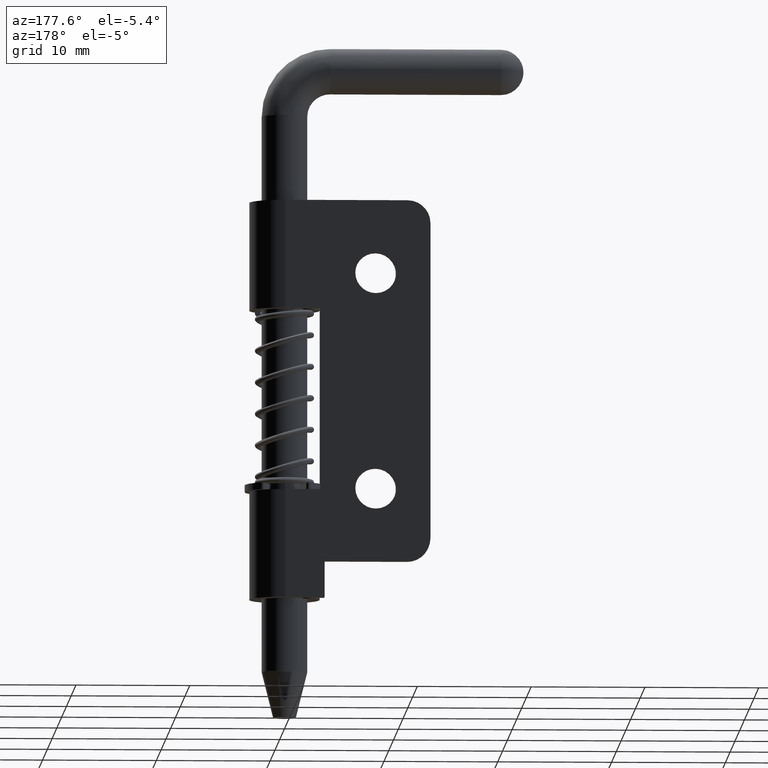
[diagram: clean part render]
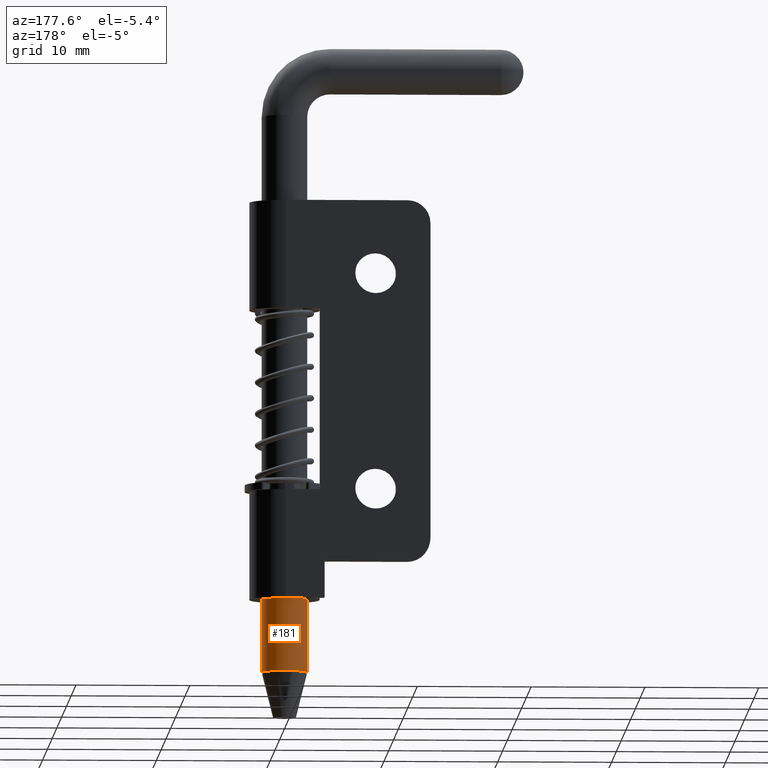
[diagram: same view with one face highlighted and labeled with its STEP entity id]
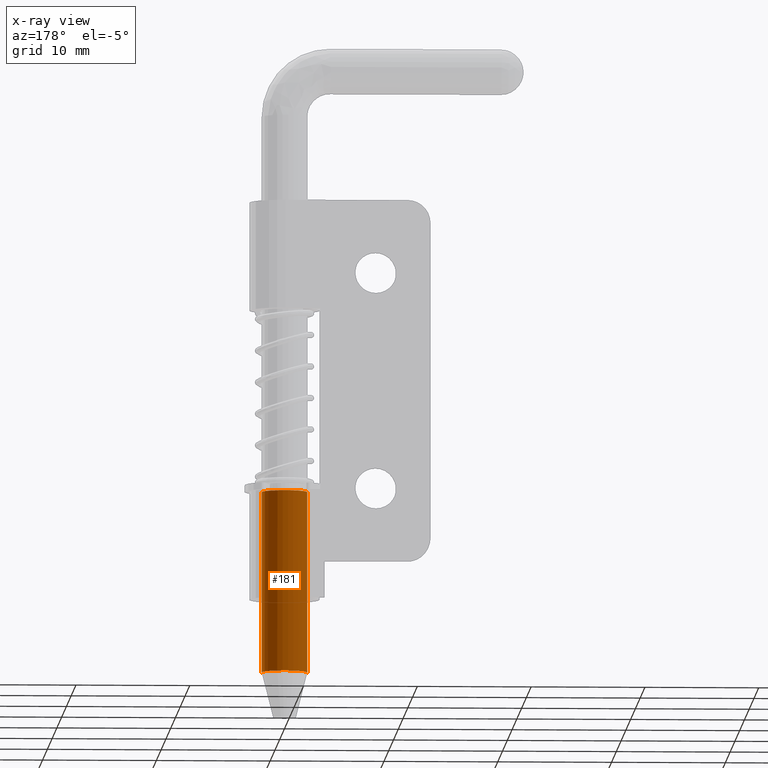
[diagram: x-ray of the same camera — body ghosted, the highlighted face saturated]
A machine part, auxiliary view. The second image highlights one B-rep face of the part: STEP entity #181.
The next image is the same camera in x-ray: the body ghosted, the highlighted face saturated — about 0% of this face is hidden behind the body in this view.
In plain terms, the highlighted cylindrical surface (edge-blend (fillet) strip) has radius 2 mm, axis along (0, 0, 1).
Its self-contained STEP definition (entity closure, byte-faithful):
#181=ADVANCED_FACE('',(#559),#558,.T.);
#558=CYLINDRICAL_SURFACE('',#1350,2.00000000000E+00);
#559=FACE_OUTER_BOUND('',#1351,.T.);
#1347=CARTESIAN_POINT('',(0.00000000000E+00,0.00000000000E+00,0.00000000000E+00));
#1348=DIRECTION('',(0.00000000000E+00,-0.00000000000E+00,1.00000000000E+00));
#1349=DIRECTION('',(1.00000000000E+00,0.00000000000E+00,0.00000000000E+00));
#1350=AXIS2_PLACEMENT_3D('',#1347,#1348,#1349);
#1351=EDGE_LOOP('',(#3275,#3276,#3277,#3278,#3279,#3280));
#3275=ORIENTED_EDGE('',*,*,#3584,.T.);
#3276=ORIENTED_EDGE('',*,*,#3617,.T.);
#3277=ORIENTED_EDGE('',*,*,#3594,.T.);
#3278=ORIENTED_EDGE('',*,*,#3638,.F.);
#3279=ORIENTED_EDGE('',*,*,#3637,.F.);
#3280=ORIENTED_EDGE('',*,*,#3639,.T.);
#3584=EDGE_CURVE('',#3769,#4038,#4039,.T.);
#3594=EDGE_CURVE('',#4106,#3859,#4107,.T.);
#3617=EDGE_CURVE('',#4038,#4106,#4251,.T.);
#3637=EDGE_CURVE('',#4360,#4359,#4379,.T.);
#3638=EDGE_CURVE('',#4359,#3859,#4385,.T.);
#3639=EDGE_CURVE('',#4360,#3769,#4391,.T.);
#3769=VERTEX_POINT('',#5245);
#3859=VERTEX_POINT('',#5300);
#4038=VERTEX_POINT('',#5421);
#4039=CIRCLE('',#5425,2.00000000000E+00);
#4106=VERTEX_POINT('',#5466);
#4107=CIRCLE('',#5470,2.00000000000E+00);
#4251=CIRCLE('',#5550,2.00000000000E+00);
#4359=VERTEX_POINT('',#5609);
#4360=VERTEX_POINT('',#5610);
#4379=CIRCLE('',#5622,2.00000000000E+00);
#4385=(BOUNDED_CURVE() B_SPLINE_CURVE(1,(#5623,#5624),.UNSPECIFIED.,.F.,.F.) B_SPLINE_CURVE_WITH_KNOTS((2,2),(8.33333328360E-02,9.16666665505E-01),.UNSPECIFIED.) CURVE() GEOMETRIC_REPRESENTATION_ITEM() RATIONAL_B_SPLINE_CURVE((1.00000000000E+00,1.00000000000E+00)) REPRESENTATION_ITEM('') );
#4391=(BOUNDED_CURVE() B_SPLINE_CURVE(1,(#5625,#5626),.UNSPECIFIED.,.F.,.F.) B_SPLINE_CURVE_WITH_KNOTS((2,2),(8.33333333333E-02,9.16666666667E-01),.UNSPECIFIED.) CURVE() GEOMETRIC_REPRESENTATION_ITEM() RATIONAL_B_SPLINE_CURVE((7.50000000000E-01,7.50000000000E-01)) REPRESENTATION_ITEM('') );
#5245=CARTESIAN_POINT('',(-2.00000000000E+00,0.00000000000E+00,-3.31000000000E+01));
#5300=CARTESIAN_POINT('',(2.00000000000E+00,0.00000000000E+00,-3.31000000000E+01));
#5421=CARTESIAN_POINT('',(-1.46446214531E+00,1.36211255958E+00,-3.31000000000E+01));
#5422=CARTESIAN_POINT('',(0.00000000000E+00,0.00000000000E+00,-3.31000000000E+01));
#5423=DIRECTION('',(-0.00000000000E+00,0.00000000000E+00,-1.00000000000E+00));
#5424=DIRECTION('',(1.00000000000E+00,-0.00000000000E+00,-0.00000000000E+00));
#5425=AXIS2_PLACEMENT_3D('',#5422,#5423,#5424);
#5466=CARTESIAN_POINT('',(1.46446214531E+00,1.36211255958E+00,-3.31000000000E+01));
#5467=CARTESIAN_POINT('',(0.00000000000E+00,0.00000000000E+00,-3.31000000000E+01));
#5468=DIRECTION('',(-0.00000000000E+00,0.00000000000E+00,-1.00000000000E+00));
#5469=DIRECTION('',(1.00000000000E+00,-0.00000000000E+00,-0.00000000000E+00));
#5470=AXIS2_PLACEMENT_3D('',#5467,#5468,#5469);
#5547=CARTESIAN_POINT('',(0.00000000000E+00,0.00000000000E+00,-3.31000000000E+01));
#5548=DIRECTION('',(-0.00000000000E+00,0.00000000000E+00,-1.00000000000E+00));
#5549=DIRECTION('',(1.00000000000E+00,-0.00000000000E+00,-0.00000000000E+00));
#5550=AXIS2_PLACEMENT_3D('',#5547,#5548,#5549);
#5609=CARTESIAN_POINT('',(2.00000000000E+00,2.22044604925E-16,-4.89999999999E+01));
#5610=CARTESIAN_POINT('',(-2.00000000000E+00,0.00000000000E+00,-4.89999999999E+01));
#5619=CARTESIAN_POINT('',(0.00000000000E+00,0.00000000000E+00,-4.89999999999E+01));
#5620=DIRECTION('',(-0.00000000000E+00,0.00000000000E+00,-1.00000000000E+00));
#5621=DIRECTION('',(-1.00000000000E+00,-1.22460635382E-16,0.00000000000E+00));
#5622=AXIS2_PLACEMENT_3D('',#5619,#5620,#5621);
#5623=CARTESIAN_POINT('',(2.00000000000E+00,0.00000000000E+00,-4.90000000094E+01));
#5624=CARTESIAN_POINT('',(2.00000000000E+00,0.00000000000E+00,-3.31000000222E+01));
#5625=CARTESIAN_POINT('',(-2.00000000000E+00,-7.40148683083E-17,-4.89999999999E+01));
#5626=CARTESIAN_POINT('',(-2.00000000000E+00,-7.40148683083E-17,-3.31000000000E+01));